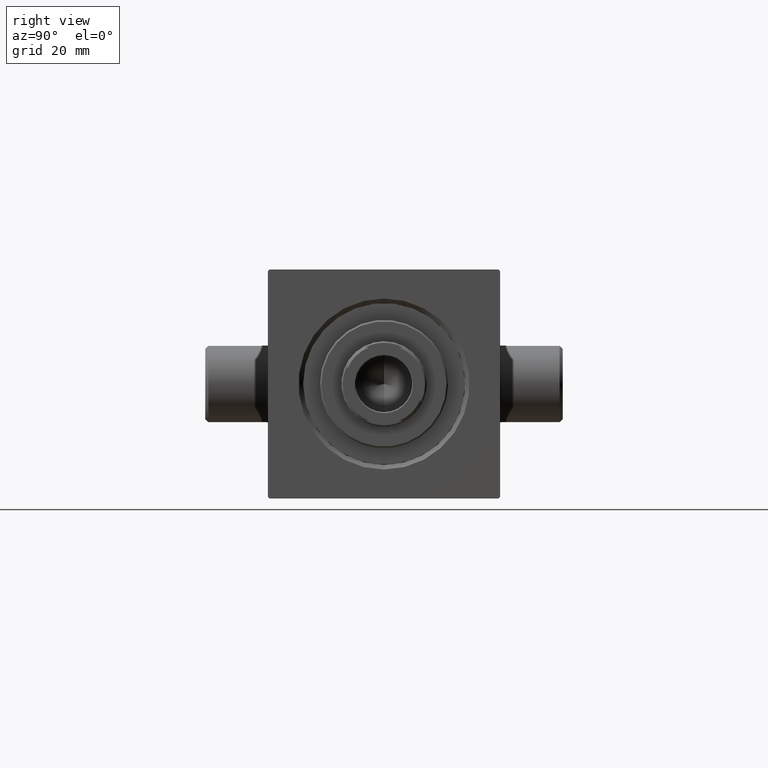
[diagram: clean part render]
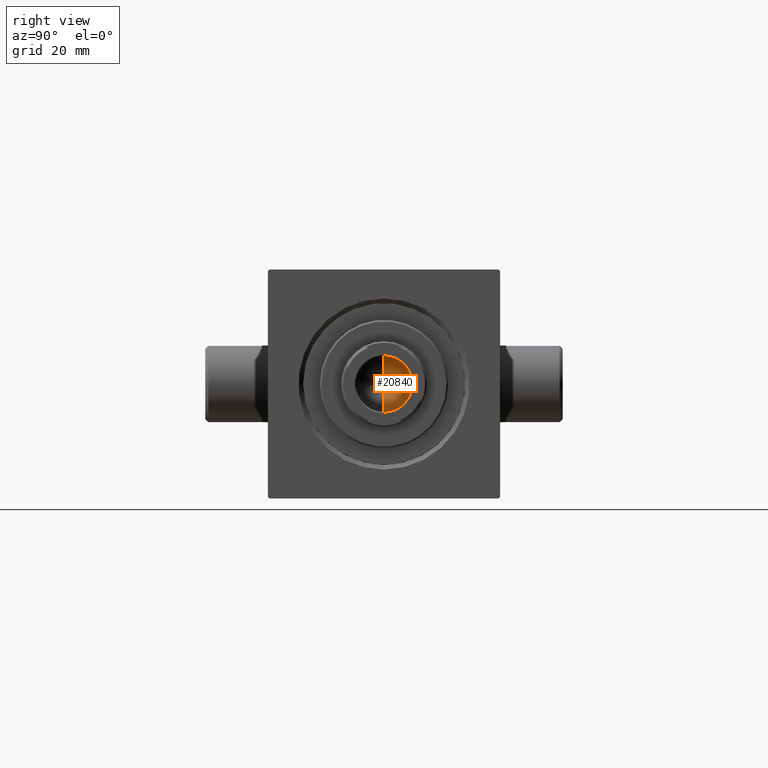
[diagram: same view with one face highlighted and labeled with its STEP entity id]
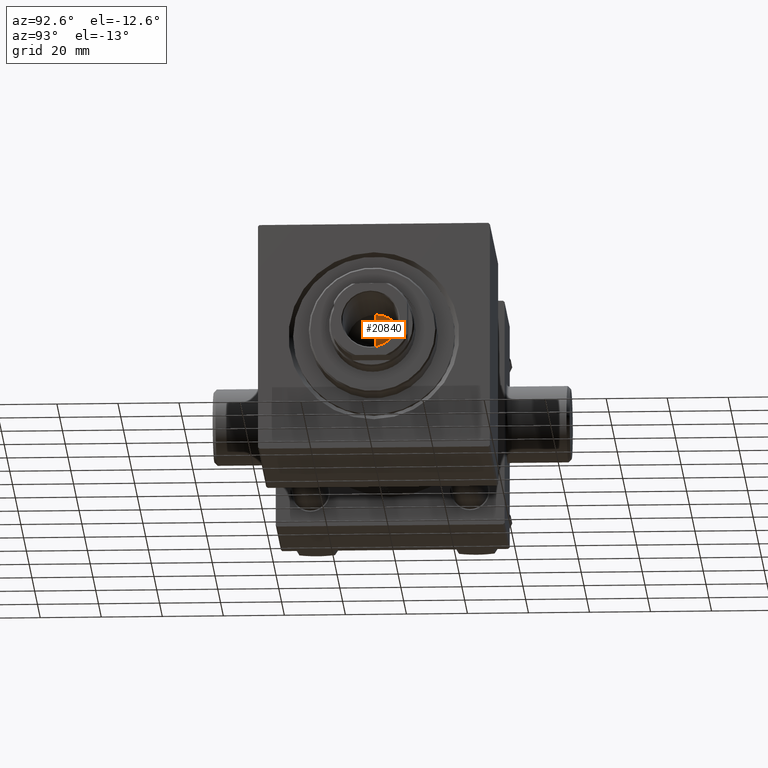
[diagram: same view with one face highlighted and labeled with its STEP entity id]
A machine part, right view. The second image highlights one B-rep face of the part: STEP entity #20840.
A second angle (auxiliary view) of the same face is appended — the face is thin or edge-on in the first view.
In plain terms, the highlighted conical surface has half-angle 59 deg.
Its self-contained STEP definition (entity closure, byte-faithful):
#1515 = DIRECTION ( 'NONE',  ( -0.000000000000000000, -0.000000000000000000, 1.000000000000000000 ) ) ;
#2845 = DIRECTION ( 'NONE',  ( 1.000000000000000000, 0.000000000000000000, 0.000000000000000000 ) ) ;
#2979 = VECTOR ( 'NONE', #9838, 1000.000000000000000 ) ;
#3000 = EDGE_CURVE ( 'NONE', #9178, #10864, #34331, .T. ) ;
#4797 = FACE_OUTER_BOUND ( 'NONE', #16362, .T. ) ;
#7476 = LINE ( 'NONE', #31820, #20246 ) ;
#9178 = VERTEX_POINT ( 'NONE', #36557 ) ;
#9838 = DIRECTION ( 'NONE',  ( -0.8571673007021117785, 1.049727191138617956E-16, 0.5150380749100550437 ) ) ;
#10864 = VERTEX_POINT ( 'NONE', #21112 ) ;
#11811 = DIRECTION ( 'NONE',  ( 1.000000000000000000, 0.000000000000000000, 0.000000000000000000 ) ) ;
#13266 = ORIENTED_EDGE ( 'NONE', *, *, #19551, .T. ) ;
#15636 = AXIS2_PLACEMENT_3D ( 'NONE', #42624, #39119, #2845 ) ;
#16362 = EDGE_LOOP ( 'NONE', ( #19038, #13266, #30529 ) ) ;
#16615 = CARTESIAN_POINT ( 'NONE',  ( -9.249999999999992895, 1.132798289211300712E-15, 107.0000000000000142 ) ) ;
#17934 = CONICAL_SURFACE ( 'NONE', #40379, 9.249999999999992895, 1.029744258676653423 ) ;
#18848 = VERTEX_POINT ( 'NONE', #21298 ) ;
#19038 = ORIENTED_EDGE ( 'NONE', *, *, #26909, .F. ) ;
#19551 = EDGE_CURVE ( 'NONE', #18848, #9178, #28087, .T. ) ;
#20246 = VECTOR ( 'NONE', #28322, 1000.000000000000000 ) ;
#20840 = ADVANCED_FACE ( 'NONE', ( #4797 ), #17934, .F. ) ;
#21112 = CARTESIAN_POINT ( 'NONE',  ( 9.249999999999992895, 0.000000000000000000, 107.0000000000000142 ) ) ;
#21298 = CARTESIAN_POINT ( 'NONE',  ( -9.769621978240258809E-15, 0.000000000000000000, 101.4420392739950785 ) ) ;
#26909 = EDGE_CURVE ( 'NONE', #18848, #10864, #7476, .T. ) ;
#28087 = LINE ( 'NONE', #16615, #2979 ) ;
#28322 = DIRECTION ( 'NONE',  ( 0.8571673007021117785, 0.000000000000000000, 0.5150380749100550437 ) ) ;
#30292 = CARTESIAN_POINT ( 'NONE',  ( 0.000000000000000000, 0.000000000000000000, 107.0000000000000142 ) ) ;
#30529 = ORIENTED_EDGE ( 'NONE', *, *, #3000, .T. ) ;
#31820 = CARTESIAN_POINT ( 'NONE',  ( 9.249999999999992895, 0.000000000000000000, 107.0000000000000142 ) ) ;
#34331 = CIRCLE ( 'NONE', #15636, 9.249999999999992895 ) ;
#36557 = CARTESIAN_POINT ( 'NONE',  ( -9.249999999999992895, 1.132798289211300712E-15, 107.0000000000000142 ) ) ;
#39119 = DIRECTION ( 'NONE',  ( -0.000000000000000000, -0.000000000000000000, 1.000000000000000000 ) ) ;
#40379 = AXIS2_PLACEMENT_3D ( 'NONE', #30292, #1515, #11811 ) ;
#42624 = CARTESIAN_POINT ( 'NONE',  ( 0.000000000000000000, 0.000000000000000000, 107.0000000000000142 ) ) ;